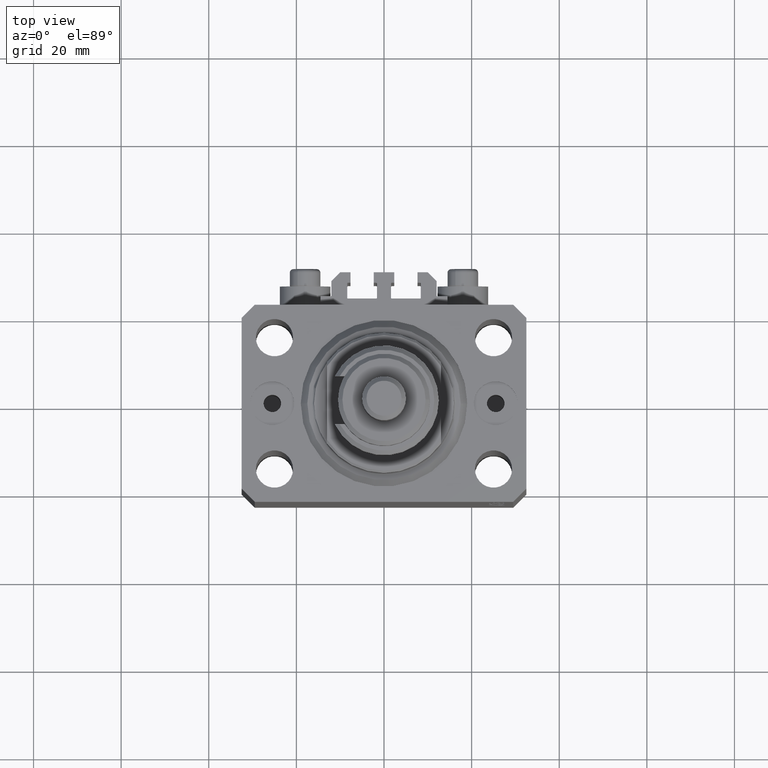
[diagram: clean part render]
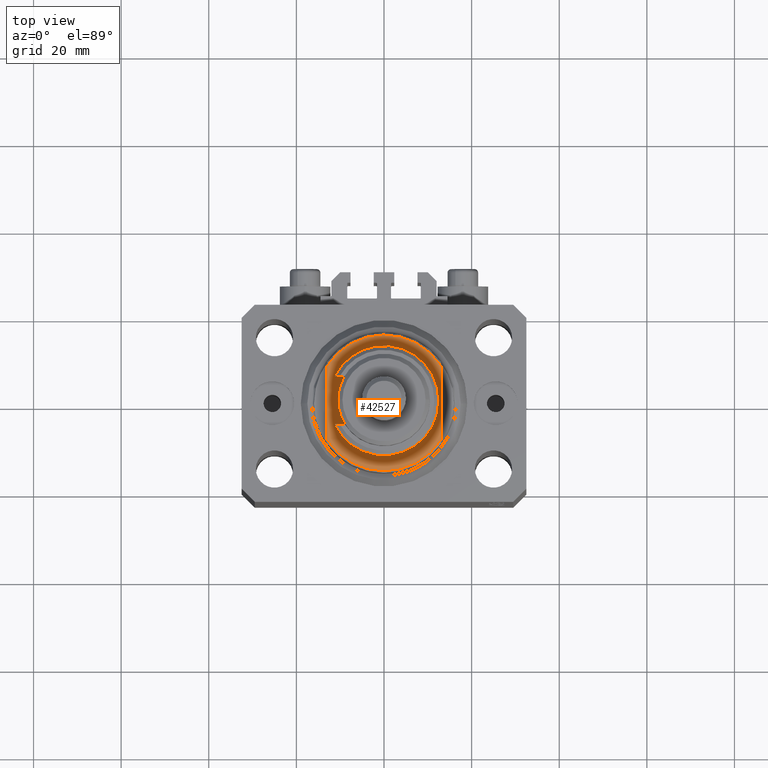
[diagram: same view with one face highlighted and labeled with its STEP entity id]
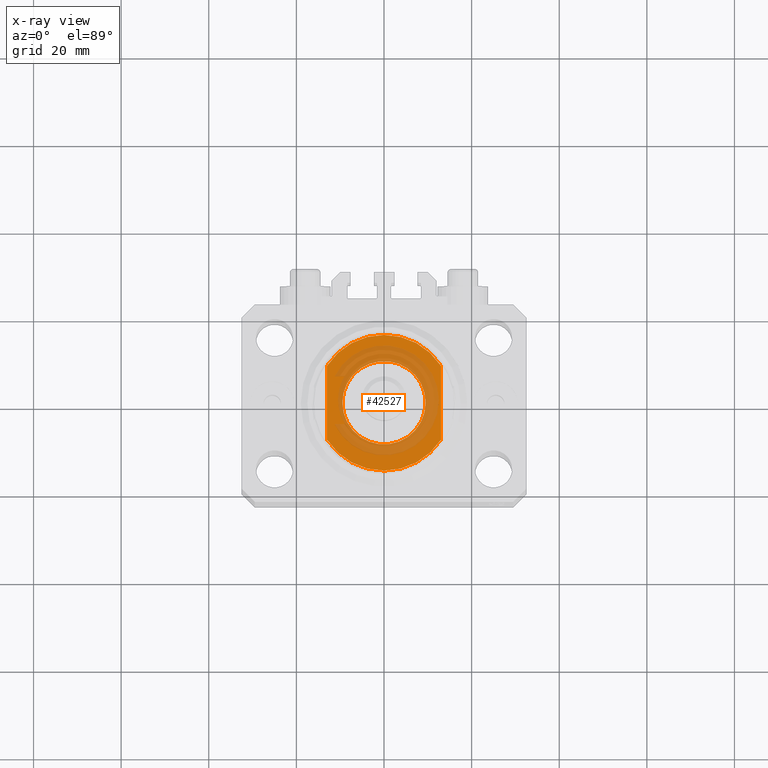
[diagram: x-ray of the same camera — body ghosted, the highlighted face saturated]
A machine part, top view. The second image highlights one B-rep face of the part: STEP entity #42527.
The next image is the same camera in x-ray: the body ghosted, the highlighted face saturated — about 45% of this face is hidden behind the body in this view.
In plain terms, the highlighted planar face has unit normal (0, 0, 1).
Its self-contained STEP definition (entity closure, byte-faithful):
#1567 = DIRECTION ( 'NONE',  ( -1.000000000000000000, 0.000000000000000000, 0.000000000000000000 ) ) ;
#2151 = VERTEX_POINT ( 'NONE', #29011 ) ;
#2392 = VERTEX_POINT ( 'NONE', #40843 ) ;
#6113 = CARTESIAN_POINT ( 'NONE',  ( 0.000000000000000000, 0.000000000000000000, -6.500000000000000000 ) ) ;
#7359 = AXIS2_PLACEMENT_3D ( 'NONE', #16039, #34517, #19576 ) ;
#8230 = CARTESIAN_POINT ( 'NONE',  ( 0.000000000000000000, 0.000000000000000000, -6.500000000000000000 ) ) ;
#9457 = VERTEX_POINT ( 'NONE', #19060 ) ;
#9768 = EDGE_LOOP ( 'NONE', ( #27572, #37965, #17950, #28845 ) ) ;
#9914 = LINE ( 'NONE', #14202, #39460 ) ;
#10542 = AXIS2_PLACEMENT_3D ( 'NONE', #6113, #36187, #1567 ) ;
#11615 = VECTOR ( 'NONE', #12283, 1000.000000000000000 ) ;
#12023 = EDGE_CURVE ( 'NONE', #2151, #36680, #15349, .T. ) ;
#12283 = DIRECTION ( 'NONE',  ( -0.000000000000000000, -1.000000000000000000, -0.000000000000000000 ) ) ;
#12944 = CIRCLE ( 'NONE', #29913, 15.50000000000003730 ) ;
#14202 = CARTESIAN_POINT ( 'NONE',  ( 13.00000000000000000, -43.08131845707602992, -6.500000000000000000 ) ) ;
#14618 = EDGE_CURVE ( 'NONE', #9457, #28634, #33530, .T. ) ;
#15349 = LINE ( 'NONE', #26964, #11615 ) ;
#16039 = CARTESIAN_POINT ( 'NONE',  ( 0.000000000000000000, 0.000000000000000000, -6.500000000000000000 ) ) ;
#17950 = ORIENTED_EDGE ( 'NONE', *, *, #40883, .T. ) ;
#18579 = CARTESIAN_POINT ( 'NONE',  ( 0.000000000000000000, 0.000000000000000000, -6.500000000000000000 ) ) ;
#19060 = CARTESIAN_POINT ( 'NONE',  ( 9.500000000000015987, 1.163414459189987457E-15, -6.500000000000000000 ) ) ;
#19576 = DIRECTION ( 'NONE',  ( -1.000000000000000000, 0.000000000000000000, -0.000000000000000000 ) ) ;
#19854 = DIRECTION ( 'NONE',  ( -1.000000000000000000, 0.000000000000000000, 0.000000000000000000 ) ) ;
#21601 = DIRECTION ( 'NONE',  ( -1.000000000000000000, 0.000000000000000000, 0.000000000000000000 ) ) ;
#22956 = CARTESIAN_POINT ( 'NONE',  ( -9.500000000000015987, 0.000000000000000000, -6.500000000000000000 ) ) ;
#23630 = DIRECTION ( 'NONE',  ( -0.000000000000000000, -0.000000000000000000, 1.000000000000000000 ) ) ;
#23789 = EDGE_CURVE ( 'NONE', #29360, #2392, #9914, .T. ) ;
#25002 = CIRCLE ( 'NONE', #41971, 9.500000000000015987 ) ;
#25574 = DIRECTION ( 'NONE',  ( 0.000000000000000000, -1.000000000000000000, -0.000000000000000000 ) ) ;
#25743 = EDGE_CURVE ( 'NONE', #28634, #9457, #25002, .T. ) ;
#26007 = DIRECTION ( 'NONE',  ( -1.000000000000000000, 0.000000000000000000, 0.000000000000000000 ) ) ;
#26098 = CARTESIAN_POINT ( 'NONE',  ( -13.00000000000000000, -8.440971508067139695, -6.500000000000000000 ) ) ;
#26260 = DIRECTION ( 'NONE',  ( 0.000000000000000000, 0.000000000000000000, -1.000000000000000000 ) ) ;
#26964 = CARTESIAN_POINT ( 'NONE',  ( -13.00000000000000000, -43.08131845707602992, -6.500000000000000000 ) ) ;
#27572 = ORIENTED_EDGE ( 'NONE', *, *, #28536, .T. ) ;
#28536 = EDGE_CURVE ( 'NONE', #2151, #29360, #12944, .T. ) ;
#28634 = VERTEX_POINT ( 'NONE', #22956 ) ;
#28845 = ORIENTED_EDGE ( 'NONE', *, *, #12023, .F. ) ;
#29011 = CARTESIAN_POINT ( 'NONE',  ( -13.00000000000000000, 8.440971508067139695, -6.500000000000000000 ) ) ;
#29360 = VERTEX_POINT ( 'NONE', #49616 ) ;
#29913 = AXIS2_PLACEMENT_3D ( 'NONE', #45734, #26260, #26007 ) ;
#32320 = CIRCLE ( 'NONE', #10542, 15.50000000000003730 ) ;
#33530 = CIRCLE ( 'NONE', #39983, 9.500000000000015987 ) ;
#33994 = DIRECTION ( 'NONE',  ( -0.000000000000000000, -0.000000000000000000, 1.000000000000000000 ) ) ;
#34517 = DIRECTION ( 'NONE',  ( 0.000000000000000000, 0.000000000000000000, -1.000000000000000000 ) ) ;
#36187 = DIRECTION ( 'NONE',  ( 0.000000000000000000, 0.000000000000000000, -1.000000000000000000 ) ) ;
#36680 = VERTEX_POINT ( 'NONE', #26098 ) ;
#37965 = ORIENTED_EDGE ( 'NONE', *, *, #23789, .T. ) ;
#38322 = FACE_OUTER_BOUND ( 'NONE', #9768, .T. ) ;
#39048 = PLANE ( 'NONE',  #7359 ) ;
#39460 = VECTOR ( 'NONE', #25574, 1000.000000000000000 ) ;
#39983 = AXIS2_PLACEMENT_3D ( 'NONE', #8230, #23630, #19854 ) ;
#40843 = CARTESIAN_POINT ( 'NONE',  ( 13.00000000000000000, -8.440971508067139695, -6.500000000000000000 ) ) ;
#40883 = EDGE_CURVE ( 'NONE', #2392, #36680, #32320, .T. ) ;
#41439 = ORIENTED_EDGE ( 'NONE', *, *, #25743, .T. ) ;
#41862 = FACE_BOUND ( 'NONE', #49143, .T. ) ;
#41971 = AXIS2_PLACEMENT_3D ( 'NONE', #18579, #33994, #21601 ) ;
#42527 = ADVANCED_FACE ( 'NONE', ( #41862, #38322 ), #39048, .T. ) ;
#45734 = CARTESIAN_POINT ( 'NONE',  ( 0.000000000000000000, 0.000000000000000000, -6.500000000000000000 ) ) ;
#47394 = ORIENTED_EDGE ( 'NONE', *, *, #14618, .T. ) ;
#49143 = EDGE_LOOP ( 'NONE', ( #41439, #47394 ) ) ;
#49616 = CARTESIAN_POINT ( 'NONE',  ( 13.00000000000000000, 8.440971508067139695, -6.500000000000000000 ) ) ;